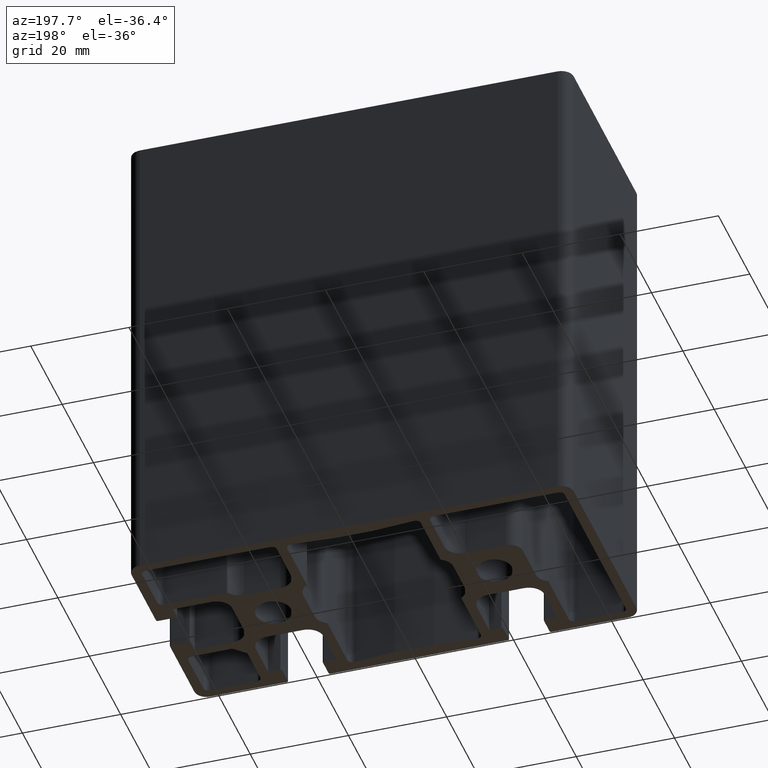
[diagram: clean part render]
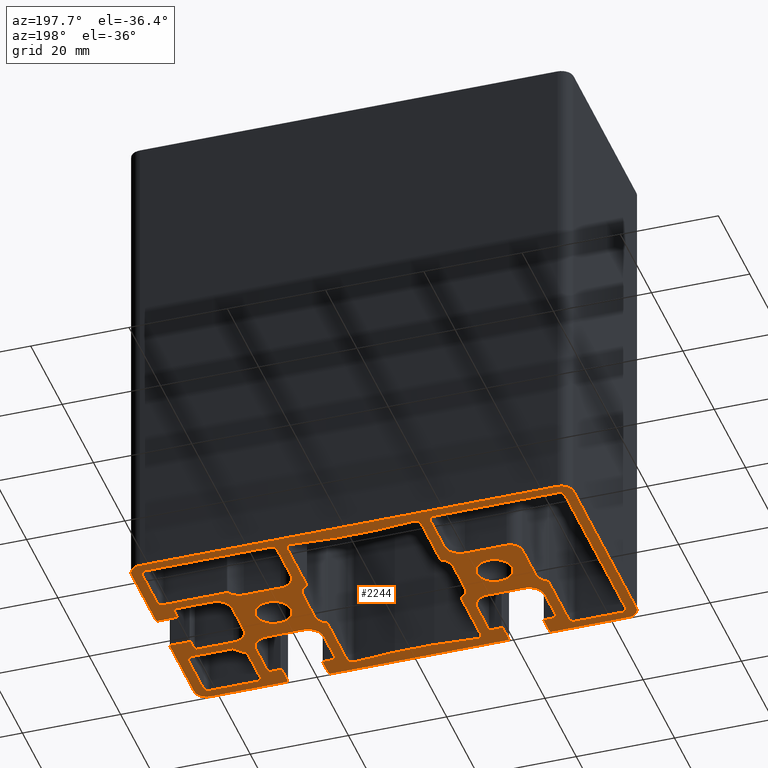
[diagram: same view with one face highlighted and labeled with its STEP entity id]
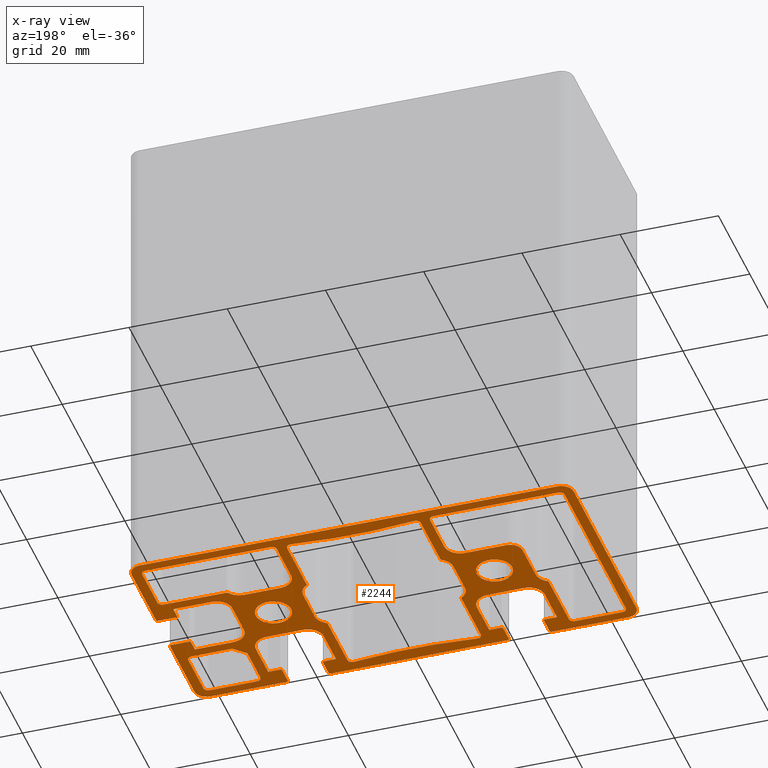
[diagram: x-ray of the same camera — body ghosted, the highlighted face saturated]
A machine part, auxiliary view. The second image highlights one B-rep face of the part: STEP entity #2244.
The next image is the same camera in x-ray: the body ghosted, the highlighted face saturated — about 0% of this face is hidden behind the body in this view.
In plain terms, the highlighted planar face has unit normal (0, 0, 1).
Its self-contained STEP definition (entity closure, byte-faithful):
#23=FACE_BOUND('',#320,.T.);
#24=FACE_BOUND('',#321,.T.);
#25=FACE_BOUND('',#322,.T.);
#26=FACE_BOUND('',#323,.T.);
#27=FACE_BOUND('',#324,.T.);
#28=FACE_BOUND('',#325,.T.);
#87=PLANE('',#2464);
#199=FACE_OUTER_BOUND('',#319,.T.);
#319=EDGE_LOOP('',(#1970,#1971,#1972,#1973,#1974,#1975,#1976,#1977,#1978,
#1979,#1980,#1981,#1982,#1983,#1984,#1985,#1986,#1987,#1988,#1989,#1990,
#1991,#1992,#1993,#1994,#1995,#1996,#1997,#1998,#1999,#2000,#2001,#2002,
#2003,#2004,#2005,#2006,#2007,#2008,#2009,#2010,#2011,#2012,#2013,#2014,
#2015,#2016,#2017,#2018,#2019));
#320=EDGE_LOOP('',(#2020,#2021,#2022,#2023,#2024,#2025,#2026,#2027,#2028,
#2029,#2030,#2031,#2032,#2033,#2034,#2035,#2036,#2037,#2038,#2039,#2040,
#2041,#2042,#2043));
#321=EDGE_LOOP('',(#2044,#2045,#2046,#2047,#2048,#2049,#2050,#2051,#2052,
#2053,#2054,#2055,#2056,#2057,#2058));
#322=EDGE_LOOP('',(#2059,#2060,#2061,#2062,#2063,#2064,#2065,#2066,#2067,
#2068,#2069));
#323=EDGE_LOOP('',(#2070,#2071,#2072,#2073,#2074,#2075,#2076,#2077));
#324=EDGE_LOOP('',(#2078));
#325=EDGE_LOOP('',(#2079));
#329=LINE('',#3139,#551);
#332=LINE('',#3145,#554);
#335=LINE('',#3151,#557);
#339=LINE('',#3163,#561);
#344=LINE('',#3181,#566);
#349=LINE('',#3199,#571);
#353=LINE('',#3211,#575);
#356=LINE('',#3217,#578);
#359=LINE('',#3223,#581);
#363=LINE('',#3235,#585);
#368=LINE('',#3253,#590);
#373=LINE('',#3269,#595);
#376=LINE('',#3277,#598);
#380=LINE('',#3289,#602);
#383=LINE('',#3295,#605);
#387=LINE('',#3307,#609);
#393=LINE('',#3326,#615);
#396=LINE('',#3332,#618);
#400=LINE('',#3344,#622);
#404=LINE('',#3358,#626);
#409=LINE('',#3371,#631);
#414=LINE('',#3389,#636);
#418=LINE('',#3401,#640);
#422=LINE('',#3413,#644);
#426=LINE('',#3425,#648);
#430=LINE('',#3437,#652);
#433=LINE('',#3448,#655);
#437=LINE('',#3460,#659);
#440=LINE('',#3466,#662);
#444=LINE('',#3478,#666);
#450=LINE('',#3499,#672);
#454=LINE('',#3511,#676);
#457=LINE('',#3517,#679);
#461=LINE('',#3529,#683);
#466=LINE('',#3542,#688);
#470=LINE('',#3554,#692);
#475=LINE('',#3572,#697);
#479=LINE('',#3584,#701);
#483=LINE('',#3601,#705);
#486=LINE('',#3607,#708);
#490=LINE('',#3619,#712);
#496=LINE('',#3640,#718);
#500=LINE('',#3652,#722);
#503=LINE('',#3658,#725);
#507=LINE('',#3668,#729);
#510=LINE('',#3676,#732);
#514=LINE('',#3683,#736);
#517=LINE('',#3689,#739);
#521=LINE('',#3701,#743);
#525=LINE('',#3713,#747);
#526=LINE('',#3729,#748);
#529=LINE('',#3734,#751);
#531=LINE('',#3738,#753);
#540=LINE('',#3764,#762);
#543=LINE('',#3772,#765);
#546=LINE('',#3780,#768);
#547=LINE('',#3784,#769);
#551=VECTOR('',#2478,8.54847544709787);
#554=VECTOR('',#2483,8.);
#557=VECTOR('',#2488,8.54847544709787);
#561=VECTOR('',#2500,12.4621117720797);
#566=VECTOR('',#2519,7.39);
#571=VECTOR('',#2538,12.4621117720797);
#575=VECTOR('',#2550,8.54847544709787);
#578=VECTOR('',#2555,8.);
#581=VECTOR('',#2560,8.54847544709787);
#585=VECTOR('',#2572,12.4621117720797);
#590=VECTOR('',#2591,7.39);
#595=VECTOR('',#2610,12.4621117720797);
#598=VECTOR('',#2615,7.4);
#602=VECTOR('',#2627,7.8);
#605=VECTOR('',#2632,2.45);
#609=VECTOR('',#2644,3.69999999999999);
#615=VECTOR('',#2664,7.8);
#618=VECTOR('',#2669,2.45);
#622=VECTOR('',#2681,3.7);
#626=VECTOR('',#2693,9.59999999999999);
#631=VECTOR('',#2706,12.8033337960393);
#636=VECTOR('',#2725,8.39500000000001);
#640=VECTOR('',#2737,8.4);
#644=VECTOR('',#2749,9.09999999999999);
#648=VECTOR('',#2761,25.4);
#652=VECTOR('',#2773,39.);
#655=VECTOR('',#2784,7.4);
#659=VECTOR('',#2796,7.8);
#662=VECTOR('',#2801,2.45);
#666=VECTOR('',#2813,3.7);
#672=VECTOR('',#2833,3.69999999999999);
#676=VECTOR('',#2845,2.45);
#679=VECTOR('',#2850,7.8);
#683=VECTOR('',#2862,25.4);
#688=VECTOR('',#2875,9.09999999999999);
#692=VECTOR('',#2887,7.395);
#697=VECTOR('',#2906,12.8033337960393);
#701=VECTOR('',#2918,9.60000000000001);
#705=VECTOR('',#2936,7.8);
#708=VECTOR('',#2941,2.45);
#712=VECTOR('',#2953,3.7);
#718=VECTOR('',#2973,3.69999999999999);
#722=VECTOR('',#2985,2.45);
#725=VECTOR('',#2990,7.79999999999999);
#729=VECTOR('',#3002,7.4);
#732=VECTOR('',#3007,8.26654762208439);
#736=VECTOR('',#3013,3.30000000000002);
#739=VECTOR('',#3018,8.26654762208437);
#743=VECTOR('',#3030,9.60000000000001);
#747=VECTOR('',#3042,9.6);
#748=VECTOR('',#3063,15.55);
#751=VECTOR('',#3068,36.1);
#753=VECTOR('',#3072,15.55);
#762=VECTOR('',#3097,15.55);
#765=VECTOR('',#3106,40.);
#768=VECTOR('',#3115,85.);
#769=VECTOR('',#3122,15.55);
#771=CIRCLE('',#2249,1.);
#773=CIRCLE('',#2255,1.);
#775=CIRCLE('',#2259,0.299999999999999);
#777=CIRCLE('',#2262,3.2);
#779=CIRCLE('',#2266,3.2);
#781=CIRCLE('',#2269,0.300000000000002);
#783=CIRCLE('',#2273,1.);
#785=CIRCLE('',#2279,1.);
#787=CIRCLE('',#2283,0.300000000000001);
#789=CIRCLE('',#2286,3.2);
#791=CIRCLE('',#2290,3.2);
#793=CIRCLE('',#2293,0.300000000000001);
#795=CIRCLE('',#2298,3.2);
#797=CIRCLE('',#2303,0.299999999999997);
#799=CIRCLE('',#2307,0.299999999999997);
#801=CIRCLE('',#2310,3.2);
#803=CIRCLE('',#2315,0.300000000000001);
#805=CIRCLE('',#2319,0.299999999999997);
#807=CIRCLE('',#2323,1.);
#809=CIRCLE('',#2327,0.29999999999999);
#811=CIRCLE('',#2330,3.19999999999999);
#813=CIRCLE('',#2334,2.5);
#815=CIRCLE('',#2338,3.2);
#817=CIRCLE('',#2342,1.);
#819=CIRCLE('',#2346,1.);
#821=CIRCLE('',#2350,1.);
#823=CIRCLE('',#2354,3.2);
#825=CIRCLE('',#2359,0.299999999999997);
#827=CIRCLE('',#2363,0.300000000000004);
#829=CIRCLE('',#2366,0.299999999999997);
#831=CIRCLE('',#2370,0.300000000000001);
#833=CIRCLE('',#2375,3.2);
#835=CIRCLE('',#2379,1.);
#837=CIRCLE('',#2383,3.2);
#839=CIRCLE('',#2387,3.19999999999996);
#841=CIRCLE('',#2390,0.300000000000009);
#843=CIRCLE('',#2394,1.);
#845=CIRCLE('',#2398,1.);
#847=CIRCLE('',#2401,3.2);
#849=CIRCLE('',#2406,0.299999999999997);
#851=CIRCLE('',#2410,0.299999999999998);
#853=CIRCLE('',#2413,0.299999999999997);
#855=CIRCLE('',#2417,0.299999999999998);
#857=CIRCLE('',#2422,3.2);
#859=CIRCLE('',#2429,1.);
#861=CIRCLE('',#2433,1.);
#863=CIRCLE('',#2437,1.);
#865=CIRCLE('',#2440,3.6);
#867=CIRCLE('',#2443,3.6);
#872=CIRCLE('',#2453,2.5);
#873=CIRCLE('',#2456,2.5);
#874=CIRCLE('',#2459,2.5);
#875=CIRCLE('',#2462,2.5);
#878=VERTEX_POINT('',#3130);
#879=VERTEX_POINT('',#3132);
#881=VERTEX_POINT('',#3138);
#883=VERTEX_POINT('',#3144);
#885=VERTEX_POINT('',#3150);
#887=VERTEX_POINT('',#3156);
#889=VERTEX_POINT('',#3162);
#891=VERTEX_POINT('',#3168);
#893=VERTEX_POINT('',#3174);
#895=VERTEX_POINT('',#3180);
#897=VERTEX_POINT('',#3186);
#899=VERTEX_POINT('',#3192);
#901=VERTEX_POINT('',#3198);
#903=VERTEX_POINT('',#3204);
#905=VERTEX_POINT('',#3210);
#907=VERTEX_POINT('',#3216);
#909=VERTEX_POINT('',#3222);
#911=VERTEX_POINT('',#3228);
#913=VERTEX_POINT('',#3234);
#915=VERTEX_POINT('',#3240);
#917=VERTEX_POINT('',#3246);
#919=VERTEX_POINT('',#3252);
#921=VERTEX_POINT('',#3258);
#923=VERTEX_POINT('',#3264);
#926=VERTEX_POINT('',#3274);
#927=VERTEX_POINT('',#3276);
#929=VERTEX_POINT('',#3282);
#931=VERTEX_POINT('',#3288);
#933=VERTEX_POINT('',#3294);
#935=VERTEX_POINT('',#3300);
#937=VERTEX_POINT('',#3306);
#939=VERTEX_POINT('',#3312);
#941=VERTEX_POINT('',#3318);
#943=VERTEX_POINT('',#3324);
#945=VERTEX_POINT('',#3330);
#947=VERTEX_POINT('',#3336);
#949=VERTEX_POINT('',#3342);
#951=VERTEX_POINT('',#3348);
#954=VERTEX_POINT('',#3355);
#955=VERTEX_POINT('',#3357);
#957=VERTEX_POINT('',#3363);
#959=VERTEX_POINT('',#3369);
#961=VERTEX_POINT('',#3375);
#963=VERTEX_POINT('',#3381);
#965=VERTEX_POINT('',#3387);
#967=VERTEX_POINT('',#3393);
#969=VERTEX_POINT('',#3399);
#971=VERTEX_POINT('',#3405);
#973=VERTEX_POINT('',#3411);
#975=VERTEX_POINT('',#3417);
#977=VERTEX_POINT('',#3423);
#979=VERTEX_POINT('',#3429);
#981=VERTEX_POINT('',#3435);
#984=VERTEX_POINT('',#3445);
#985=VERTEX_POINT('',#3447);
#987=VERTEX_POINT('',#3453);
#989=VERTEX_POINT('',#3459);
#991=VERTEX_POINT('',#3465);
#993=VERTEX_POINT('',#3471);
#995=VERTEX_POINT('',#3477);
#997=VERTEX_POINT('',#3483);
#1000=VERTEX_POINT('',#3490);
#1001=VERTEX_POINT('',#3492);
#1003=VERTEX_POINT('',#3498);
#1005=VERTEX_POINT('',#3504);
#1007=VERTEX_POINT('',#3510);
#1009=VERTEX_POINT('',#3516);
#1012=VERTEX_POINT('',#3526);
#1013=VERTEX_POINT('',#3528);
#1015=VERTEX_POINT('',#3534);
#1017=VERTEX_POINT('',#3540);
#1019=VERTEX_POINT('',#3546);
#1021=VERTEX_POINT('',#3552);
#1023=VERTEX_POINT('',#3558);
#1025=VERTEX_POINT('',#3564);
#1027=VERTEX_POINT('',#3570);
#1029=VERTEX_POINT('',#3576);
#1031=VERTEX_POINT('',#3582);
#1034=VERTEX_POINT('',#3592);
#1035=VERTEX_POINT('',#3594);
#1037=VERTEX_POINT('',#3600);
#1039=VERTEX_POINT('',#3606);
#1041=VERTEX_POINT('',#3612);
#1043=VERTEX_POINT('',#3618);
#1045=VERTEX_POINT('',#3624);
#1048=VERTEX_POINT('',#3631);
#1049=VERTEX_POINT('',#3633);
#1051=VERTEX_POINT('',#3639);
#1053=VERTEX_POINT('',#3645);
#1055=VERTEX_POINT('',#3651);
#1057=VERTEX_POINT('',#3657);
#1059=VERTEX_POINT('',#3663);
#1062=VERTEX_POINT('',#3673);
#1063=VERTEX_POINT('',#3675);
#1065=VERTEX_POINT('',#3681);
#1067=VERTEX_POINT('',#3687);
#1069=VERTEX_POINT('',#3693);
#1071=VERTEX_POINT('',#3699);
#1073=VERTEX_POINT('',#3705);
#1075=VERTEX_POINT('',#3711);
#1077=VERTEX_POINT('',#3720);
#1079=VERTEX_POINT('',#3725);
#1080=VERTEX_POINT('',#3728);
#1082=VERTEX_POINT('',#3737);
#1090=VERTEX_POINT('',#3758);
#1091=VERTEX_POINT('',#3762);
#1092=VERTEX_POINT('',#3766);
#1093=VERTEX_POINT('',#3770);
#1094=VERTEX_POINT('',#3774);
#1095=VERTEX_POINT('',#3778);
#1098=EDGE_CURVE('',#879,#878,#771,.T.);
#1101=EDGE_CURVE('',#881,#879,#329,.T.);
#1104=EDGE_CURVE('',#883,#881,#332,.T.);
#1107=EDGE_CURVE('',#885,#883,#335,.T.);
#1110=EDGE_CURVE('',#887,#885,#773,.T.);
#1113=EDGE_CURVE('',#889,#887,#339,.T.);
#1116=EDGE_CURVE('',#891,#889,#775,.T.);
#1119=EDGE_CURVE('',#893,#891,#777,.T.);
#1122=EDGE_CURVE('',#895,#893,#344,.T.);
#1125=EDGE_CURVE('',#897,#895,#779,.T.);
#1128=EDGE_CURVE('',#899,#897,#781,.T.);
#1131=EDGE_CURVE('',#901,#899,#349,.T.);
#1134=EDGE_CURVE('',#903,#901,#783,.T.);
#1137=EDGE_CURVE('',#905,#903,#353,.T.);
#1140=EDGE_CURVE('',#907,#905,#356,.T.);
#1143=EDGE_CURVE('',#909,#907,#359,.T.);
#1146=EDGE_CURVE('',#911,#909,#785,.T.);
#1149=EDGE_CURVE('',#913,#911,#363,.T.);
#1152=EDGE_CURVE('',#915,#913,#787,.T.);
#1155=EDGE_CURVE('',#917,#915,#789,.T.);
#1158=EDGE_CURVE('',#919,#917,#368,.T.);
#1161=EDGE_CURVE('',#921,#919,#791,.T.);
#1164=EDGE_CURVE('',#923,#921,#793,.T.);
#1167=EDGE_CURVE('',#878,#923,#373,.T.);
#1170=EDGE_CURVE('',#927,#926,#376,.T.);
#1173=EDGE_CURVE('',#929,#927,#795,.T.);
#1176=EDGE_CURVE('',#931,#929,#380,.T.);
#1179=EDGE_CURVE('',#933,#931,#383,.T.);
#1182=EDGE_CURVE('',#935,#933,#797,.T.);
#1185=EDGE_CURVE('',#937,#935,#387,.T.);
#1188=EDGE_CURVE('',#939,#937,#799,.T.);
#1192=EDGE_CURVE('',#926,#941,#801,.T.);
#1195=EDGE_CURVE('',#941,#943,#393,.T.);
#1198=EDGE_CURVE('',#943,#945,#396,.T.);
#1201=EDGE_CURVE('',#945,#947,#803,.T.);
#1204=EDGE_CURVE('',#947,#949,#400,.T.);
#1207=EDGE_CURVE('',#949,#951,#805,.T.);
#1210=EDGE_CURVE('',#955,#954,#404,.T.);
#1214=EDGE_CURVE('',#954,#957,#807,.T.);
#1217=EDGE_CURVE('',#957,#959,#409,.T.);
#1220=EDGE_CURVE('',#959,#961,#809,.T.);
#1223=EDGE_CURVE('',#961,#963,#811,.T.);
#1226=EDGE_CURVE('',#963,#965,#414,.T.);
#1229=EDGE_CURVE('',#965,#967,#813,.T.);
#1232=EDGE_CURVE('',#967,#969,#418,.T.);
#1235=EDGE_CURVE('',#969,#971,#815,.T.);
#1238=EDGE_CURVE('',#971,#973,#422,.T.);
#1241=EDGE_CURVE('',#973,#975,#817,.T.);
#1244=EDGE_CURVE('',#975,#977,#426,.T.);
#1247=EDGE_CURVE('',#977,#979,#819,.T.);
#1250=EDGE_CURVE('',#979,#981,#430,.T.);
#1252=EDGE_CURVE('',#981,#955,#821,.T.);
#1255=EDGE_CURVE('',#985,#984,#433,.T.);
#1258=EDGE_CURVE('',#987,#985,#823,.T.);
#1261=EDGE_CURVE('',#989,#987,#437,.T.);
#1264=EDGE_CURVE('',#991,#989,#440,.T.);
#1267=EDGE_CURVE('',#993,#991,#825,.T.);
#1270=EDGE_CURVE('',#995,#993,#444,.T.);
#1273=EDGE_CURVE('',#997,#995,#827,.T.);
#1277=EDGE_CURVE('',#1001,#1000,#829,.T.);
#1280=EDGE_CURVE('',#1003,#1001,#450,.T.);
#1283=EDGE_CURVE('',#1005,#1003,#831,.T.);
#1286=EDGE_CURVE('',#1007,#1005,#454,.T.);
#1289=EDGE_CURVE('',#1009,#1007,#457,.T.);
#1292=EDGE_CURVE('',#984,#1009,#833,.T.);
#1295=EDGE_CURVE('',#1013,#1012,#461,.T.);
#1299=EDGE_CURVE('',#1012,#1015,#835,.T.);
#1302=EDGE_CURVE('',#1015,#1017,#466,.T.);
#1305=EDGE_CURVE('',#1017,#1019,#837,.T.);
#1308=EDGE_CURVE('',#1019,#1021,#470,.T.);
#1311=EDGE_CURVE('',#1021,#1023,#839,.T.);
#1314=EDGE_CURVE('',#1023,#1025,#841,.T.);
#1317=EDGE_CURVE('',#1025,#1027,#475,.T.);
#1320=EDGE_CURVE('',#1027,#1029,#843,.T.);
#1323=EDGE_CURVE('',#1029,#1031,#479,.T.);
#1325=EDGE_CURVE('',#1031,#1013,#845,.T.);
#1328=EDGE_CURVE('',#1035,#1034,#847,.T.);
#1331=EDGE_CURVE('',#1037,#1035,#483,.T.);
#1334=EDGE_CURVE('',#1039,#1037,#486,.T.);
#1337=EDGE_CURVE('',#1041,#1039,#849,.T.);
#1340=EDGE_CURVE('',#1043,#1041,#490,.T.);
#1343=EDGE_CURVE('',#1045,#1043,#851,.T.);
#1347=EDGE_CURVE('',#1049,#1048,#853,.T.);
#1350=EDGE_CURVE('',#1051,#1049,#496,.T.);
#1353=EDGE_CURVE('',#1053,#1051,#855,.T.);
#1356=EDGE_CURVE('',#1055,#1053,#500,.T.);
#1359=EDGE_CURVE('',#1057,#1055,#503,.T.);
#1362=EDGE_CURVE('',#1059,#1057,#857,.T.);
#1365=EDGE_CURVE('',#1034,#1059,#507,.T.);
#1368=EDGE_CURVE('',#1063,#1062,#510,.T.);
#1372=EDGE_CURVE('',#1062,#1065,#514,.T.);
#1375=EDGE_CURVE('',#1065,#1067,#517,.T.);
#1378=EDGE_CURVE('',#1067,#1069,#859,.T.);
#1381=EDGE_CURVE('',#1069,#1071,#521,.T.);
#1384=EDGE_CURVE('',#1071,#1073,#861,.T.);
#1387=EDGE_CURVE('',#1073,#1075,#525,.T.);
#1389=EDGE_CURVE('',#1075,#1063,#863,.T.);
#1391=EDGE_CURVE('',#1077,#1077,#865,.T.);
#1393=EDGE_CURVE('',#1079,#1079,#867,.T.);
#1394=EDGE_CURVE('',#1080,#997,#526,.T.);
#1397=EDGE_CURVE('',#1000,#939,#529,.T.);
#1399=EDGE_CURVE('',#1082,#1045,#531,.T.);
#1410=EDGE_CURVE('',#1090,#1080,#872,.T.);
#1413=EDGE_CURVE('',#951,#1091,#540,.T.);
#1415=EDGE_CURVE('',#1091,#1092,#873,.T.);
#1417=EDGE_CURVE('',#1092,#1093,#543,.T.);
#1419=EDGE_CURVE('',#1093,#1094,#874,.T.);
#1421=EDGE_CURVE('',#1094,#1095,#546,.T.);
#1422=EDGE_CURVE('',#1095,#1082,#875,.T.);
#1423=EDGE_CURVE('',#1048,#1090,#547,.T.);
#1970=ORIENTED_EDGE('',*,*,#1207,.T.);
#1971=ORIENTED_EDGE('',*,*,#1413,.T.);
#1972=ORIENTED_EDGE('',*,*,#1415,.T.);
#1973=ORIENTED_EDGE('',*,*,#1417,.T.);
#1974=ORIENTED_EDGE('',*,*,#1419,.T.);
#1975=ORIENTED_EDGE('',*,*,#1421,.T.);
#1976=ORIENTED_EDGE('',*,*,#1422,.T.);
#1977=ORIENTED_EDGE('',*,*,#1399,.T.);
#1978=ORIENTED_EDGE('',*,*,#1343,.T.);
#1979=ORIENTED_EDGE('',*,*,#1340,.T.);
#1980=ORIENTED_EDGE('',*,*,#1337,.T.);
#1981=ORIENTED_EDGE('',*,*,#1334,.T.);
#1982=ORIENTED_EDGE('',*,*,#1331,.T.);
#1983=ORIENTED_EDGE('',*,*,#1328,.T.);
#1984=ORIENTED_EDGE('',*,*,#1365,.T.);
#1985=ORIENTED_EDGE('',*,*,#1362,.T.);
#1986=ORIENTED_EDGE('',*,*,#1359,.T.);
#1987=ORIENTED_EDGE('',*,*,#1356,.T.);
#1988=ORIENTED_EDGE('',*,*,#1353,.T.);
#1989=ORIENTED_EDGE('',*,*,#1350,.T.);
#1990=ORIENTED_EDGE('',*,*,#1347,.T.);
#1991=ORIENTED_EDGE('',*,*,#1423,.T.);
#1992=ORIENTED_EDGE('',*,*,#1410,.T.);
#1993=ORIENTED_EDGE('',*,*,#1394,.T.);
#1994=ORIENTED_EDGE('',*,*,#1273,.T.);
#1995=ORIENTED_EDGE('',*,*,#1270,.T.);
#1996=ORIENTED_EDGE('',*,*,#1267,.T.);
#1997=ORIENTED_EDGE('',*,*,#1264,.T.);
#1998=ORIENTED_EDGE('',*,*,#1261,.T.);
#1999=ORIENTED_EDGE('',*,*,#1258,.T.);
#2000=ORIENTED_EDGE('',*,*,#1255,.T.);
#2001=ORIENTED_EDGE('',*,*,#1292,.T.);
#2002=ORIENTED_EDGE('',*,*,#1289,.T.);
#2003=ORIENTED_EDGE('',*,*,#1286,.T.);
#2004=ORIENTED_EDGE('',*,*,#1283,.T.);
#2005=ORIENTED_EDGE('',*,*,#1280,.T.);
#2006=ORIENTED_EDGE('',*,*,#1277,.T.);
#2007=ORIENTED_EDGE('',*,*,#1397,.T.);
#2008=ORIENTED_EDGE('',*,*,#1188,.T.);
#2009=ORIENTED_EDGE('',*,*,#1185,.T.);
#2010=ORIENTED_EDGE('',*,*,#1182,.T.);
#2011=ORIENTED_EDGE('',*,*,#1179,.T.);
#2012=ORIENTED_EDGE('',*,*,#1176,.T.);
#2013=ORIENTED_EDGE('',*,*,#1173,.T.);
#2014=ORIENTED_EDGE('',*,*,#1170,.T.);
#2015=ORIENTED_EDGE('',*,*,#1192,.T.);
#2016=ORIENTED_EDGE('',*,*,#1195,.T.);
#2017=ORIENTED_EDGE('',*,*,#1198,.T.);
#2018=ORIENTED_EDGE('',*,*,#1201,.T.);
#2019=ORIENTED_EDGE('',*,*,#1204,.T.);
#2020=ORIENTED_EDGE('',*,*,#1098,.T.);
#2021=ORIENTED_EDGE('',*,*,#1167,.T.);
#2022=ORIENTED_EDGE('',*,*,#1164,.T.);
#2023=ORIENTED_EDGE('',*,*,#1161,.T.);
#2024=ORIENTED_EDGE('',*,*,#1158,.T.);
#2025=ORIENTED_EDGE('',*,*,#1155,.T.);
#2026=ORIENTED_EDGE('',*,*,#1152,.T.);
#2027=ORIENTED_EDGE('',*,*,#1149,.T.);
#2028=ORIENTED_EDGE('',*,*,#1146,.T.);
#2029=ORIENTED_EDGE('',*,*,#1143,.T.);
#2030=ORIENTED_EDGE('',*,*,#1140,.T.);
#2031=ORIENTED_EDGE('',*,*,#1137,.T.);
#2032=ORIENTED_EDGE('',*,*,#1134,.T.);
#2033=ORIENTED_EDGE('',*,*,#1131,.T.);
#2034=ORIENTED_EDGE('',*,*,#1128,.T.);
#2035=ORIENTED_EDGE('',*,*,#1125,.T.);
#2036=ORIENTED_EDGE('',*,*,#1122,.T.);
#2037=ORIENTED_EDGE('',*,*,#1119,.T.);
#2038=ORIENTED_EDGE('',*,*,#1116,.T.);
#2039=ORIENTED_EDGE('',*,*,#1113,.T.);
#2040=ORIENTED_EDGE('',*,*,#1110,.T.);
#2041=ORIENTED_EDGE('',*,*,#1107,.T.);
#2042=ORIENTED_EDGE('',*,*,#1104,.T.);
#2043=ORIENTED_EDGE('',*,*,#1101,.T.);
#2044=ORIENTED_EDGE('',*,*,#1210,.T.);
#2045=ORIENTED_EDGE('',*,*,#1214,.T.);
#2046=ORIENTED_EDGE('',*,*,#1217,.T.);
#2047=ORIENTED_EDGE('',*,*,#1220,.T.);
#2048=ORIENTED_EDGE('',*,*,#1223,.T.);
#2049=ORIENTED_EDGE('',*,*,#1226,.T.);
#2050=ORIENTED_EDGE('',*,*,#1229,.T.);
#2051=ORIENTED_EDGE('',*,*,#1232,.T.);
#2052=ORIENTED_EDGE('',*,*,#1235,.T.);
#2053=ORIENTED_EDGE('',*,*,#1238,.T.);
#2054=ORIENTED_EDGE('',*,*,#1241,.T.);
#2055=ORIENTED_EDGE('',*,*,#1244,.T.);
#2056=ORIENTED_EDGE('',*,*,#1247,.T.);
#2057=ORIENTED_EDGE('',*,*,#1250,.T.);
#2058=ORIENTED_EDGE('',*,*,#1252,.T.);
#2059=ORIENTED_EDGE('',*,*,#1295,.T.);
#2060=ORIENTED_EDGE('',*,*,#1299,.T.);
#2061=ORIENTED_EDGE('',*,*,#1302,.T.);
#2062=ORIENTED_EDGE('',*,*,#1305,.T.);
#2063=ORIENTED_EDGE('',*,*,#1308,.T.);
#2064=ORIENTED_EDGE('',*,*,#1311,.T.);
#2065=ORIENTED_EDGE('',*,*,#1314,.T.);
#2066=ORIENTED_EDGE('',*,*,#1317,.T.);
#2067=ORIENTED_EDGE('',*,*,#1320,.T.);
#2068=ORIENTED_EDGE('',*,*,#1323,.T.);
#2069=ORIENTED_EDGE('',*,*,#1325,.T.);
#2070=ORIENTED_EDGE('',*,*,#1368,.T.);
#2071=ORIENTED_EDGE('',*,*,#1372,.T.);
#2072=ORIENTED_EDGE('',*,*,#1375,.T.);
#2073=ORIENTED_EDGE('',*,*,#1378,.T.);
#2074=ORIENTED_EDGE('',*,*,#1381,.T.);
#2075=ORIENTED_EDGE('',*,*,#1384,.T.);
#2076=ORIENTED_EDGE('',*,*,#1387,.T.);
#2077=ORIENTED_EDGE('',*,*,#1389,.T.);
#2078=ORIENTED_EDGE('',*,*,#1391,.T.);
#2079=ORIENTED_EDGE('',*,*,#1393,.T.);
#2244=ADVANCED_FACE('',(#199,#23,#24,#25,#26,#27,#28),#87,.F.);
#2249=AXIS2_PLACEMENT_3D('',#3133,#2472,#2473);
#2255=AXIS2_PLACEMENT_3D('',#3157,#2494,#2495);
#2259=AXIS2_PLACEMENT_3D('',#3169,#2506,#2507);
#2262=AXIS2_PLACEMENT_3D('',#3175,#2513,#2514);
#2266=AXIS2_PLACEMENT_3D('',#3187,#2525,#2526);
#2269=AXIS2_PLACEMENT_3D('',#3193,#2532,#2533);
#2273=AXIS2_PLACEMENT_3D('',#3205,#2544,#2545);
#2279=AXIS2_PLACEMENT_3D('',#3229,#2566,#2567);
#2283=AXIS2_PLACEMENT_3D('',#3241,#2578,#2579);
#2286=AXIS2_PLACEMENT_3D('',#3247,#2585,#2586);
#2290=AXIS2_PLACEMENT_3D('',#3259,#2597,#2598);
#2293=AXIS2_PLACEMENT_3D('',#3265,#2604,#2605);
#2298=AXIS2_PLACEMENT_3D('',#3283,#2621,#2622);
#2303=AXIS2_PLACEMENT_3D('',#3301,#2638,#2639);
#2307=AXIS2_PLACEMENT_3D('',#3313,#2650,#2651);
#2310=AXIS2_PLACEMENT_3D('',#3320,#2658,#2659);
#2315=AXIS2_PLACEMENT_3D('',#3338,#2675,#2676);
#2319=AXIS2_PLACEMENT_3D('',#3350,#2687,#2688);
#2323=AXIS2_PLACEMENT_3D('',#3365,#2700,#2701);
#2327=AXIS2_PLACEMENT_3D('',#3377,#2712,#2713);
#2330=AXIS2_PLACEMENT_3D('',#3383,#2719,#2720);
#2334=AXIS2_PLACEMENT_3D('',#3395,#2731,#2732);
#2338=AXIS2_PLACEMENT_3D('',#3407,#2743,#2744);
#2342=AXIS2_PLACEMENT_3D('',#3419,#2755,#2756);
#2346=AXIS2_PLACEMENT_3D('',#3431,#2767,#2768);
#2350=AXIS2_PLACEMENT_3D('',#3440,#2778,#2779);
#2354=AXIS2_PLACEMENT_3D('',#3454,#2790,#2791);
#2359=AXIS2_PLACEMENT_3D('',#3472,#2807,#2808);
#2363=AXIS2_PLACEMENT_3D('',#3484,#2819,#2820);
#2366=AXIS2_PLACEMENT_3D('',#3493,#2827,#2828);
#2370=AXIS2_PLACEMENT_3D('',#3505,#2839,#2840);
#2375=AXIS2_PLACEMENT_3D('',#3521,#2856,#2857);
#2379=AXIS2_PLACEMENT_3D('',#3536,#2869,#2870);
#2383=AXIS2_PLACEMENT_3D('',#3548,#2881,#2882);
#2387=AXIS2_PLACEMENT_3D('',#3560,#2893,#2894);
#2390=AXIS2_PLACEMENT_3D('',#3566,#2900,#2901);
#2394=AXIS2_PLACEMENT_3D('',#3578,#2912,#2913);
#2398=AXIS2_PLACEMENT_3D('',#3587,#2923,#2924);
#2401=AXIS2_PLACEMENT_3D('',#3595,#2930,#2931);
#2406=AXIS2_PLACEMENT_3D('',#3613,#2947,#2948);
#2410=AXIS2_PLACEMENT_3D('',#3625,#2959,#2960);
#2413=AXIS2_PLACEMENT_3D('',#3634,#2967,#2968);
#2417=AXIS2_PLACEMENT_3D('',#3646,#2979,#2980);
#2422=AXIS2_PLACEMENT_3D('',#3664,#2996,#2997);
#2429=AXIS2_PLACEMENT_3D('',#3695,#3024,#3025);
#2433=AXIS2_PLACEMENT_3D('',#3707,#3036,#3037);
#2437=AXIS2_PLACEMENT_3D('',#3716,#3047,#3048);
#2440=AXIS2_PLACEMENT_3D('',#3721,#3053,#3054);
#2443=AXIS2_PLACEMENT_3D('',#3726,#3059,#3060);
#2453=AXIS2_PLACEMENT_3D('',#3759,#3091,#3092);
#2456=AXIS2_PLACEMENT_3D('',#3768,#3101,#3102);
#2459=AXIS2_PLACEMENT_3D('',#3776,#3110,#3111);
#2462=AXIS2_PLACEMENT_3D('',#3782,#3118,#3119);
#2464=AXIS2_PLACEMENT_3D('',#3785,#3123,#3124);
#2472=DIRECTION('center_axis',(0.,0.,1.));
#2473=DIRECTION('ref_axis',(0.0767190281268172,0.99705275222692,0.));
#2478=DIRECTION('',(-0.99705275222692,0.0767190281268191,0.));
#2483=DIRECTION('',(-1.,-2.77555756156289E-16,0.));
#2488=DIRECTION('',(-0.99705275222692,-0.0767190281268188,0.));
#2494=DIRECTION('center_axis',(0.,0.,1.));
#2495=DIRECTION('ref_axis',(1.,0.,0.));
#2500=DIRECTION('',(-1.78175744998936E-16,1.,0.));
#2506=DIRECTION('center_axis',(0.,0.,-1.));
#2507=DIRECTION('ref_axis',(1.,7.40148683083442E-15,0.));
#2513=DIRECTION('center_axis',(0.,0.,1.));
#2514=DIRECTION('ref_axis',(1.,0.,0.));
#2519=DIRECTION('',(0.,1.,0.));
#2525=DIRECTION('center_axis',(0.,0.,1.));
#2526=DIRECTION('ref_axis',(0.514285714285716,-0.85761891541735,0.));
#2532=DIRECTION('center_axis',(0.,0.,-1.));
#2533=DIRECTION('ref_axis',(0.514285714285715,-0.85761891541735,0.));
#2538=DIRECTION('',(1.78175744998936E-16,1.,0.));
#2544=DIRECTION('center_axis',(0.,0.,1.));
#2545=DIRECTION('ref_axis',(-0.0767190281268172,-0.99705275222692,0.));
#2550=DIRECTION('',(0.99705275222692,-0.0767190281268191,0.));
#2555=DIRECTION('',(1.,2.77555756156289E-16,0.));
#2560=DIRECTION('',(0.99705275222692,0.0767190281268188,0.));
#2566=DIRECTION('center_axis',(0.,0.,1.));
#2567=DIRECTION('ref_axis',(-1.,0.,0.));
#2572=DIRECTION('',(0.,-1.,0.));
#2578=DIRECTION('center_axis',(0.,0.,-1.));
#2579=DIRECTION('ref_axis',(-1.,0.,0.));
#2585=DIRECTION('center_axis',(0.,0.,1.));
#2586=DIRECTION('ref_axis',(-1.,1.73472347597681E-16,0.));
#2591=DIRECTION('',(0.,-1.,0.));
#2597=DIRECTION('center_axis',(0.,0.,1.));
#2598=DIRECTION('ref_axis',(-0.514285714285714,0.85761891541735,0.));
#2604=DIRECTION('center_axis',(0.,0.,-1.));
#2605=DIRECTION('ref_axis',(-0.514285714285702,0.857618915417358,0.));
#2610=DIRECTION('',(1.78175744998936E-16,-1.,0.));
#2615=DIRECTION('',(-1.,6.00120553851436E-16,0.));
#2621=DIRECTION('center_axis',(0.,0.,1.));
#2622=DIRECTION('ref_axis',(1.,0.,0.));
#2627=DIRECTION('',(5.69345140833414E-16,1.,0.));
#2632=DIRECTION('',(1.,0.,0.));
#2638=DIRECTION('center_axis',(0.,0.,-1.));
#2639=DIRECTION('ref_axis',(-1.48029736616689E-14,-1.,0.));
#2644=DIRECTION('',(0.,1.,0.));
#2650=DIRECTION('center_axis',(0.,0.,-1.));
#2651=DIRECTION('ref_axis',(1.,0.,0.));
#2658=DIRECTION('center_axis',(0.,0.,1.));
#2659=DIRECTION('ref_axis',(-1.38777878078144E-15,1.,0.));
#2664=DIRECTION('',(0.,-1.,0.));
#2669=DIRECTION('',(1.,0.,0.));
#2675=DIRECTION('center_axis',(0.,0.,-1.));
#2676=DIRECTION('ref_axis',(-1.,0.,0.));
#2681=DIRECTION('',(-1.20024110770287E-15,-1.,0.));
#2687=DIRECTION('center_axis',(0.,0.,-1.));
#2688=DIRECTION('ref_axis',(1.48029736616689E-14,1.,0.));
#2693=DIRECTION('',(1.,0.,0.));
#2700=DIRECTION('center_axis',(0.,0.,1.));
#2701=DIRECTION('ref_axis',(0.,1.,0.));
#2706=DIRECTION('',(6.93708712003497E-16,1.,0.));
#2712=DIRECTION('center_axis',(0.,0.,-1.));
#2713=DIRECTION('ref_axis',(-0.514285714285722,0.857618915417346,0.));
#2719=DIRECTION('center_axis',(0.,0.,1.));
#2720=DIRECTION('ref_axis',(-0.514285714285716,0.857618915417349,0.));
#2725=DIRECTION('',(5.28992507266304E-16,1.,0.));
#2731=DIRECTION('center_axis',(0.,0.,-1.));
#2732=DIRECTION('ref_axis',(0.,1.,0.));
#2737=DIRECTION('',(1.,-1.32169407693471E-16,0.));
#2743=DIRECTION('center_axis',(0.,0.,1.));
#2744=DIRECTION('ref_axis',(-1.38777878078145E-15,1.,0.));
#2749=DIRECTION('',(4.88010120714355E-16,1.,0.));
#2755=DIRECTION('center_axis',(0.,0.,1.));
#2756=DIRECTION('ref_axis',(-1.,0.,0.));
#2761=DIRECTION('',(-1.,-1.74838271594513E-16,0.));
#2767=DIRECTION('center_axis',(0.,0.,1.));
#2768=DIRECTION('ref_axis',(0.,-1.,0.));
#2773=DIRECTION('',(0.,-1.,0.));
#2778=DIRECTION('center_axis',(0.,0.,1.));
#2779=DIRECTION('ref_axis',(1.,0.,0.));
#2784=DIRECTION('',(-1.,-1.50030138462859E-16,0.));
#2790=DIRECTION('center_axis',(0.,0.,1.));
#2791=DIRECTION('ref_axis',(-1.,0.,0.));
#2796=DIRECTION('',(0.,1.,0.));
#2801=DIRECTION('',(1.,0.,0.));
#2807=DIRECTION('center_axis',(0.,0.,-1.));
#2808=DIRECTION('ref_axis',(1.48029736616689E-14,1.,0.));
#2813=DIRECTION('',(-1.20024110770287E-15,1.,0.));
#2819=DIRECTION('center_axis',(0.,0.,-1.));
#2820=DIRECTION('ref_axis',(-1.,0.,0.));
#2827=DIRECTION('center_axis',(0.,0.,-1.));
#2828=DIRECTION('ref_axis',(0.,-1.,0.));
#2833=DIRECTION('',(-1.20024110770287E-15,-1.,0.));
#2839=DIRECTION('center_axis',(0.,0.,-1.));
#2840=DIRECTION('ref_axis',(1.,0.,0.));
#2845=DIRECTION('',(1.,0.,0.));
#2850=DIRECTION('',(2.84672570416707E-16,-1.,0.));
#2856=DIRECTION('center_axis',(0.,0.,1.));
#2857=DIRECTION('ref_axis',(0.,-1.,0.));
#2862=DIRECTION('',(-1.,1.74838271594513E-16,0.));
#2869=DIRECTION('center_axis',(0.,0.,1.));
#2870=DIRECTION('ref_axis',(0.,-1.,0.));
#2875=DIRECTION('',(-4.88010120714355E-16,-1.,0.));
#2881=DIRECTION('center_axis',(0.,0.,1.));
#2882=DIRECTION('ref_axis',(1.,-6.93889390390722E-16,0.));
#2887=DIRECTION('',(1.,-1.20105262975E-15,0.));
#2893=DIRECTION('center_axis',(0.,0.,1.));
#2894=DIRECTION('ref_axis',(9.71445146547025E-15,1.,0.));
#2900=DIRECTION('center_axis',(0.,0.,-1.));
#2901=DIRECTION('ref_axis',(-4.44089209850049E-14,1.,0.));
#2906=DIRECTION('',(1.,-6.93708712003498E-16,0.));
#2912=DIRECTION('center_axis',(0.,0.,1.));
#2913=DIRECTION('ref_axis',(0.,1.,0.));
#2918=DIRECTION('',(0.,1.,0.));
#2923=DIRECTION('center_axis',(0.,0.,1.));
#2924=DIRECTION('ref_axis',(-1.,0.,0.));
#2930=DIRECTION('center_axis',(0.,0.,1.));
#2931=DIRECTION('ref_axis',(0.,-1.,0.));
#2936=DIRECTION('',(-1.,4.27008855625061E-16,0.));
#2941=DIRECTION('',(0.,1.,0.));
#2947=DIRECTION('center_axis',(0.,0.,-1.));
#2948=DIRECTION('ref_axis',(-1.,5.55111512312574E-15,0.));
#2953=DIRECTION('',(-1.,-7.50150692314295E-16,0.));
#2959=DIRECTION('center_axis',(0.,0.,-1.));
#2960=DIRECTION('ref_axis',(0.,-1.,0.));
#2967=DIRECTION('center_axis',(0.,0.,-1.));
#2968=DIRECTION('ref_axis',(1.,-5.5511151231259E-15,0.));
#2973=DIRECTION('',(1.,-1.50030138462859E-16,0.));
#2979=DIRECTION('center_axis',(0.,0.,-1.));
#2980=DIRECTION('ref_axis',(0.,1.,0.));
#2985=DIRECTION('',(0.,1.,0.));
#2990=DIRECTION('',(1.,1.42336285208354E-16,0.));
#2996=DIRECTION('center_axis',(0.,0.,1.));
#2997=DIRECTION('ref_axis',(1.,8.67361737988403E-16,0.));
#3002=DIRECTION('',(0.,-1.,0.));
#3007=DIRECTION('',(-1.,-5.37212425491461E-16,0.));
#3013=DIRECTION('',(-0.707106781186546,-0.707106781186549,0.));
#3018=DIRECTION('',(-5.37212425491462E-16,-1.,0.));
#3024=DIRECTION('center_axis',(0.,0.,1.));
#3025=DIRECTION('ref_axis',(1.,0.,0.));
#3030=DIRECTION('',(1.,0.,0.));
#3036=DIRECTION('center_axis',(0.,0.,1.));
#3037=DIRECTION('ref_axis',(0.,1.,0.));
#3042=DIRECTION('',(0.,1.,0.));
#3047=DIRECTION('center_axis',(0.,0.,1.));
#3048=DIRECTION('ref_axis',(-1.,0.,0.));
#3053=DIRECTION('center_axis',(0.,0.,1.));
#3054=DIRECTION('ref_axis',(-1.,0.,0.));
#3059=DIRECTION('center_axis',(0.,0.,1.));
#3060=DIRECTION('ref_axis',(-1.,0.,0.));
#3063=DIRECTION('',(-1.,0.,0.));
#3068=DIRECTION('',(-1.,0.,0.));
#3072=DIRECTION('',(0.,-1.,0.));
#3091=DIRECTION('center_axis',(0.,0.,-1.));
#3092=DIRECTION('ref_axis',(0.,-1.,0.));
#3097=DIRECTION('',(-1.,0.,0.));
#3101=DIRECTION('center_axis',(0.,0.,-1.));
#3102=DIRECTION('ref_axis',(-1.,0.,0.));
#3106=DIRECTION('',(0.,1.,0.));
#3110=DIRECTION('center_axis',(0.,0.,-1.));
#3111=DIRECTION('ref_axis',(0.,1.,0.));
#3115=DIRECTION('',(1.,0.,0.));
#3118=DIRECTION('center_axis',(0.,0.,-1.));
#3119=DIRECTION('ref_axis',(1.,0.,0.));
#3122=DIRECTION('',(0.,-1.,0.));
#3123=DIRECTION('center_axis',(0.,0.,1.));
#3124=DIRECTION('ref_axis',(1.,0.,0.));
#3130=CARTESIAN_POINT('',(-13.6,19.1587779760404,0.));
#3132=CARTESIAN_POINT('',(-12.5232809718732,20.1558307282673,0.));
#3133=CARTESIAN_POINT('Origin',(-12.6,19.1587779760404,0.));
#3138=CARTESIAN_POINT('',(-4.,19.5,0.));
#3139=CARTESIAN_POINT('',(-1.26596566666876,19.2896275232679,0.));
#3144=CARTESIAN_POINT('',(4.,19.5,0.));
#3145=CARTESIAN_POINT('',(2.,19.5,0.));
#3150=CARTESIAN_POINT('',(12.5232809718732,20.1558307282673,0.));
#3151=CARTESIAN_POINT('',(5.52760615260535,19.6175428874016,0.));
#3156=CARTESIAN_POINT('',(13.6,19.1587779760404,0.));
#3157=CARTESIAN_POINT('Origin',(12.6,19.1587779760404,0.));
#3162=CARTESIAN_POINT('',(13.6,6.69666620396073,0.));
#3163=CARTESIAN_POINT('',(13.6,3.34833310198036,0.));
#3168=CARTESIAN_POINT('',(13.7457142857143,6.43938052933552,0.));
#3169=CARTESIAN_POINT('Origin',(13.9,6.69666620396073,0.));
#3174=CARTESIAN_POINT('',(15.3,3.695,0.));
#3175=CARTESIAN_POINT('Origin',(12.1,3.695,0.));
#3180=CARTESIAN_POINT('',(15.3,-3.695,0.));
#3181=CARTESIAN_POINT('',(15.3,-1.8475,0.));
#3186=CARTESIAN_POINT('',(13.7457142857143,-6.43938052933552,0.));
#3187=CARTESIAN_POINT('Origin',(12.1,-3.695,0.));
#3192=CARTESIAN_POINT('',(13.6,-6.69666620396073,0.));
#3193=CARTESIAN_POINT('Origin',(13.9,-6.69666620396073,0.));
#3198=CARTESIAN_POINT('',(13.6,-19.1587779760404,0.));
#3199=CARTESIAN_POINT('',(13.6,-9.5793889880202,0.));
#3204=CARTESIAN_POINT('',(12.5232809718732,-20.1558307282673,0.));
#3205=CARTESIAN_POINT('Origin',(12.6,-19.1587779760404,0.));
#3210=CARTESIAN_POINT('',(4.,-19.5,0.));
#3211=CARTESIAN_POINT('',(1.26596566666876,-19.2896275232679,0.));
#3216=CARTESIAN_POINT('',(-4.,-19.5,0.));
#3217=CARTESIAN_POINT('',(-2.,-19.5,0.));
#3222=CARTESIAN_POINT('',(-12.5232809718732,-20.1558307282673,0.));
#3223=CARTESIAN_POINT('',(-5.52760615260535,-19.6175428874016,0.));
#3228=CARTESIAN_POINT('',(-13.6,-19.1587779760404,0.));
#3229=CARTESIAN_POINT('Origin',(-12.6,-19.1587779760404,0.));
#3234=CARTESIAN_POINT('',(-13.6,-6.69666620396073,0.));
#3235=CARTESIAN_POINT('',(-13.6,-3.34833310198036,0.));
#3240=CARTESIAN_POINT('',(-13.7457142857143,-6.43938052933552,0.));
#3241=CARTESIAN_POINT('Origin',(-13.9,-6.69666620396073,0.));
#3246=CARTESIAN_POINT('',(-15.3,-3.695,0.));
#3247=CARTESIAN_POINT('Origin',(-12.1,-3.695,0.));
#3252=CARTESIAN_POINT('',(-15.3,3.695,0.));
#3253=CARTESIAN_POINT('',(-15.3,1.8475,0.));
#3258=CARTESIAN_POINT('',(-13.7457142857143,6.43938052933552,0.));
#3259=CARTESIAN_POINT('Origin',(-12.1,3.695,0.));
#3264=CARTESIAN_POINT('',(-13.6,6.69666620396073,0.));
#3265=CARTESIAN_POINT('Origin',(-13.9,6.69666620396073,0.));
#3269=CARTESIAN_POINT('',(-13.6,9.5793889880202,0.));
#3274=CARTESIAN_POINT('',(-26.2,-7.2,0.));
#3276=CARTESIAN_POINT('',(-18.8,-7.2,0.));
#3277=CARTESIAN_POINT('',(-9.4,-7.20000000000001,0.));
#3282=CARTESIAN_POINT('',(-15.6,-10.4,0.));
#3283=CARTESIAN_POINT('Origin',(-18.8,-10.4,0.));
#3288=CARTESIAN_POINT('',(-15.6,-18.2,0.));
#3289=CARTESIAN_POINT('',(-15.6,-9.1,0.));
#3294=CARTESIAN_POINT('',(-18.05,-18.2,0.));
#3295=CARTESIAN_POINT('',(-9.025,-18.2,0.));
#3300=CARTESIAN_POINT('',(-18.35,-18.5,0.));
#3301=CARTESIAN_POINT('Origin',(-18.05,-18.5,0.));
#3306=CARTESIAN_POINT('',(-18.35,-22.2,0.));
#3307=CARTESIAN_POINT('',(-18.35,-11.1,0.));
#3312=CARTESIAN_POINT('',(-18.05,-22.5,0.));
#3313=CARTESIAN_POINT('Origin',(-18.05,-22.2,0.));
#3318=CARTESIAN_POINT('',(-29.4,-10.4,0.));
#3320=CARTESIAN_POINT('Origin',(-26.2,-10.4,0.));
#3324=CARTESIAN_POINT('',(-29.4,-18.2,0.));
#3326=CARTESIAN_POINT('',(-29.4,-5.2,0.));
#3330=CARTESIAN_POINT('',(-26.95,-18.2,0.));
#3332=CARTESIAN_POINT('',(-14.7,-18.2,0.));
#3336=CARTESIAN_POINT('',(-26.65,-18.5,0.));
#3338=CARTESIAN_POINT('Origin',(-26.95,-18.5,0.));
#3342=CARTESIAN_POINT('',(-26.65,-22.2,0.));
#3344=CARTESIAN_POINT('',(-26.65,-9.24999999999999,0.));
#3348=CARTESIAN_POINT('',(-26.95,-22.5,0.));
#3350=CARTESIAN_POINT('Origin',(-26.95,-22.2,0.));
#3355=CARTESIAN_POINT('',(-32.4,-20.5,0.));
#3357=CARTESIAN_POINT('',(-42.,-20.5,0.));
#3358=CARTESIAN_POINT('',(-21.,-20.5,0.));
#3363=CARTESIAN_POINT('',(-31.4,-19.5,0.));
#3365=CARTESIAN_POINT('Origin',(-32.4,-19.5,0.));
#3369=CARTESIAN_POINT('',(-31.4,-6.69666620396073,0.));
#3371=CARTESIAN_POINT('',(-31.4,-9.74999999999999,0.));
#3375=CARTESIAN_POINT('',(-31.2542857142857,-6.43938052933553,0.));
#3377=CARTESIAN_POINT('Origin',(-31.1,-6.69666620396072,0.));
#3381=CARTESIAN_POINT('',(-29.7,-3.695,0.));
#3383=CARTESIAN_POINT('Origin',(-32.9,-3.69500000000001,0.));
#3387=CARTESIAN_POINT('',(-29.7,4.70000000000001,0.));
#3389=CARTESIAN_POINT('',(-29.7,-1.84749999999999,0.));
#3393=CARTESIAN_POINT('',(-27.2,7.20000000000001,0.));
#3395=CARTESIAN_POINT('Origin',(-27.2,4.70000000000001,0.));
#3399=CARTESIAN_POINT('',(-18.8,7.20000000000001,0.));
#3401=CARTESIAN_POINT('',(-13.6,7.20000000000001,0.));
#3405=CARTESIAN_POINT('',(-15.6,10.4,0.));
#3407=CARTESIAN_POINT('Origin',(-18.8,10.4,0.));
#3411=CARTESIAN_POINT('',(-15.6,19.5,0.));
#3413=CARTESIAN_POINT('',(-15.6,5.20000000000001,0.));
#3417=CARTESIAN_POINT('',(-16.6,20.5,0.));
#3419=CARTESIAN_POINT('Origin',(-16.6,19.5,0.));
#3423=CARTESIAN_POINT('',(-42.,20.5,0.));
#3425=CARTESIAN_POINT('',(-8.30000000000001,20.5,0.));
#3429=CARTESIAN_POINT('',(-43.,19.5,0.));
#3431=CARTESIAN_POINT('Origin',(-42.,19.5,0.));
#3435=CARTESIAN_POINT('',(-43.,-19.5,0.));
#3437=CARTESIAN_POINT('',(-43.,9.75,0.));
#3440=CARTESIAN_POINT('Origin',(-42.,-19.5,0.));
#3445=CARTESIAN_POINT('',(18.8,-7.20000000000001,0.));
#3447=CARTESIAN_POINT('',(26.2,-7.2,0.));
#3448=CARTESIAN_POINT('',(9.4,-7.20000000000001,0.));
#3453=CARTESIAN_POINT('',(29.4,-10.4,0.));
#3454=CARTESIAN_POINT('Origin',(26.2,-10.4,0.));
#3459=CARTESIAN_POINT('',(29.4,-18.2,0.));
#3460=CARTESIAN_POINT('',(29.4,-5.2,0.));
#3465=CARTESIAN_POINT('',(26.95,-18.2,0.));
#3466=CARTESIAN_POINT('',(14.7,-18.2,0.));
#3471=CARTESIAN_POINT('',(26.65,-18.5,0.));
#3472=CARTESIAN_POINT('Origin',(26.95,-18.5,0.));
#3477=CARTESIAN_POINT('',(26.65,-22.2,0.));
#3478=CARTESIAN_POINT('',(26.65,-9.24999999999999,0.));
#3483=CARTESIAN_POINT('',(26.95,-22.5,0.));
#3484=CARTESIAN_POINT('Origin',(26.95,-22.2,0.));
#3490=CARTESIAN_POINT('',(18.05,-22.5,0.));
#3492=CARTESIAN_POINT('',(18.35,-22.2,0.));
#3493=CARTESIAN_POINT('Origin',(18.05,-22.2,0.));
#3498=CARTESIAN_POINT('',(18.35,-18.5,0.));
#3499=CARTESIAN_POINT('',(18.35,-11.1,0.));
#3504=CARTESIAN_POINT('',(18.05,-18.2,0.));
#3505=CARTESIAN_POINT('Origin',(18.05,-18.5,0.));
#3510=CARTESIAN_POINT('',(15.6,-18.2,0.));
#3511=CARTESIAN_POINT('',(9.025,-18.2,0.));
#3516=CARTESIAN_POINT('',(15.6,-10.4,0.));
#3517=CARTESIAN_POINT('',(15.6,-9.1,0.));
#3521=CARTESIAN_POINT('Origin',(18.8,-10.4,0.));
#3526=CARTESIAN_POINT('',(16.6,20.5,0.));
#3528=CARTESIAN_POINT('',(42.,20.5,0.));
#3529=CARTESIAN_POINT('',(21.,20.5,0.));
#3534=CARTESIAN_POINT('',(15.6,19.5,0.));
#3536=CARTESIAN_POINT('Origin',(16.6,19.5,0.));
#3540=CARTESIAN_POINT('',(15.6,10.4,0.));
#3542=CARTESIAN_POINT('',(15.6,9.74999999999999,0.));
#3546=CARTESIAN_POINT('',(18.8,7.2,0.));
#3548=CARTESIAN_POINT('Origin',(18.8,10.4,0.));
#3552=CARTESIAN_POINT('',(26.195,7.19999999999999,0.));
#3554=CARTESIAN_POINT('',(9.40000000000001,7.20000000000001,0.));
#3558=CARTESIAN_POINT('',(28.9393805293355,8.75428571428569,0.));
#3560=CARTESIAN_POINT('Origin',(26.195,10.3999999999999,0.));
#3564=CARTESIAN_POINT('',(29.1966662039607,8.9,0.));
#3566=CARTESIAN_POINT('Origin',(29.1966662039607,8.59999999999999,0.));
#3570=CARTESIAN_POINT('',(42.,8.89999999999999,0.));
#3572=CARTESIAN_POINT('',(14.5983331019804,8.90000000000001,0.));
#3576=CARTESIAN_POINT('',(43.,9.89999999999999,0.));
#3578=CARTESIAN_POINT('Origin',(42.,9.89999999999999,0.));
#3582=CARTESIAN_POINT('',(43.,19.5,0.));
#3584=CARTESIAN_POINT('',(43.,4.94999999999999,0.));
#3587=CARTESIAN_POINT('Origin',(42.,19.5,0.));
#3592=CARTESIAN_POINT('',(29.7,3.7,0.));
#3594=CARTESIAN_POINT('',(32.9,6.9,0.));
#3595=CARTESIAN_POINT('Origin',(32.9,3.7,0.));
#3600=CARTESIAN_POINT('',(40.7,6.89999999999999,0.));
#3601=CARTESIAN_POINT('',(16.45,6.9,0.));
#3606=CARTESIAN_POINT('',(40.7,4.44999999999999,0.));
#3607=CARTESIAN_POINT('',(40.7,3.45,0.));
#3612=CARTESIAN_POINT('',(41.,4.14999999999999,0.));
#3613=CARTESIAN_POINT('Origin',(41.,4.44999999999999,0.));
#3618=CARTESIAN_POINT('',(44.7,4.14999999999999,0.));
#3619=CARTESIAN_POINT('',(20.5,4.14999999999997,0.));
#3624=CARTESIAN_POINT('',(45.,4.44999999999999,0.));
#3625=CARTESIAN_POINT('Origin',(44.7,4.44999999999999,0.));
#3631=CARTESIAN_POINT('',(45.,-4.45,0.));
#3633=CARTESIAN_POINT('',(44.7,-4.15000000000001,0.));
#3634=CARTESIAN_POINT('Origin',(44.7,-4.45,0.));
#3639=CARTESIAN_POINT('',(41.,-4.15000000000001,0.));
#3640=CARTESIAN_POINT('',(22.35,-4.15,0.));
#3645=CARTESIAN_POINT('',(40.7,-4.45000000000001,0.));
#3646=CARTESIAN_POINT('Origin',(41.,-4.45,0.));
#3651=CARTESIAN_POINT('',(40.7,-6.90000000000001,0.));
#3652=CARTESIAN_POINT('',(40.7,-2.225,0.));
#3657=CARTESIAN_POINT('',(32.9,-6.90000000000001,0.));
#3658=CARTESIAN_POINT('',(20.35,-6.90000000000001,0.));
#3663=CARTESIAN_POINT('',(29.7,-3.70000000000001,0.));
#3664=CARTESIAN_POINT('Origin',(32.9,-3.70000000000001,0.));
#3668=CARTESIAN_POINT('',(29.7,-1.85,0.));
#3673=CARTESIAN_POINT('',(33.7334523779156,-8.90000000000001,0.));
#3675=CARTESIAN_POINT('',(42.,-8.90000000000001,0.));
#3676=CARTESIAN_POINT('',(21.,-8.90000000000002,0.));
#3681=CARTESIAN_POINT('',(31.4,-11.2334523779156,0.));
#3683=CARTESIAN_POINT('',(27.5250892834367,-15.1083630944789,0.));
#3687=CARTESIAN_POINT('',(31.4,-19.5,0.));
#3689=CARTESIAN_POINT('',(31.4,-5.61672618895783,0.));
#3693=CARTESIAN_POINT('',(32.4,-20.5,0.));
#3695=CARTESIAN_POINT('Origin',(32.4,-19.5,0.));
#3699=CARTESIAN_POINT('',(42.,-20.5,0.));
#3701=CARTESIAN_POINT('',(16.2,-20.5,0.));
#3705=CARTESIAN_POINT('',(43.,-19.5,0.));
#3707=CARTESIAN_POINT('Origin',(42.,-19.5,0.));
#3711=CARTESIAN_POINT('',(43.,-9.90000000000001,0.));
#3713=CARTESIAN_POINT('',(43.,-9.75,0.));
#3716=CARTESIAN_POINT('Origin',(42.,-9.90000000000001,0.));
#3720=CARTESIAN_POINT('',(-18.9,4.40872847693047E-16,0.));
#3721=CARTESIAN_POINT('Origin',(-22.5,0.,0.));
#3725=CARTESIAN_POINT('',(26.1,-2.3145824503885E-15,0.));
#3726=CARTESIAN_POINT('Origin',(22.5,-2.75545529808154E-15,0.));
#3728=CARTESIAN_POINT('',(42.5,-22.5,0.));
#3729=CARTESIAN_POINT('',(-21.25,-22.5,0.));
#3734=CARTESIAN_POINT('',(-21.25,-22.5,0.));
#3737=CARTESIAN_POINT('',(45.,20.,0.));
#3738=CARTESIAN_POINT('',(45.,-10.,0.));
#3758=CARTESIAN_POINT('',(45.,-20.,0.));
#3759=CARTESIAN_POINT('Origin',(42.5,-20.,0.));
#3762=CARTESIAN_POINT('',(-42.5,-22.5,0.));
#3764=CARTESIAN_POINT('',(-21.25,-22.5,0.));
#3766=CARTESIAN_POINT('',(-45.,-20.,0.));
#3768=CARTESIAN_POINT('Origin',(-42.5,-20.,0.));
#3770=CARTESIAN_POINT('',(-45.,20.,0.));
#3772=CARTESIAN_POINT('',(-45.,10.,0.));
#3774=CARTESIAN_POINT('',(-42.5,22.5,0.));
#3776=CARTESIAN_POINT('Origin',(-42.5,20.,0.));
#3778=CARTESIAN_POINT('',(42.5,22.5,0.));
#3780=CARTESIAN_POINT('',(21.25,22.5,0.));
#3782=CARTESIAN_POINT('Origin',(42.5,20.,0.));
#3784=CARTESIAN_POINT('',(45.,-10.,0.));
#3785=CARTESIAN_POINT('Origin',(0.,0.,0.));